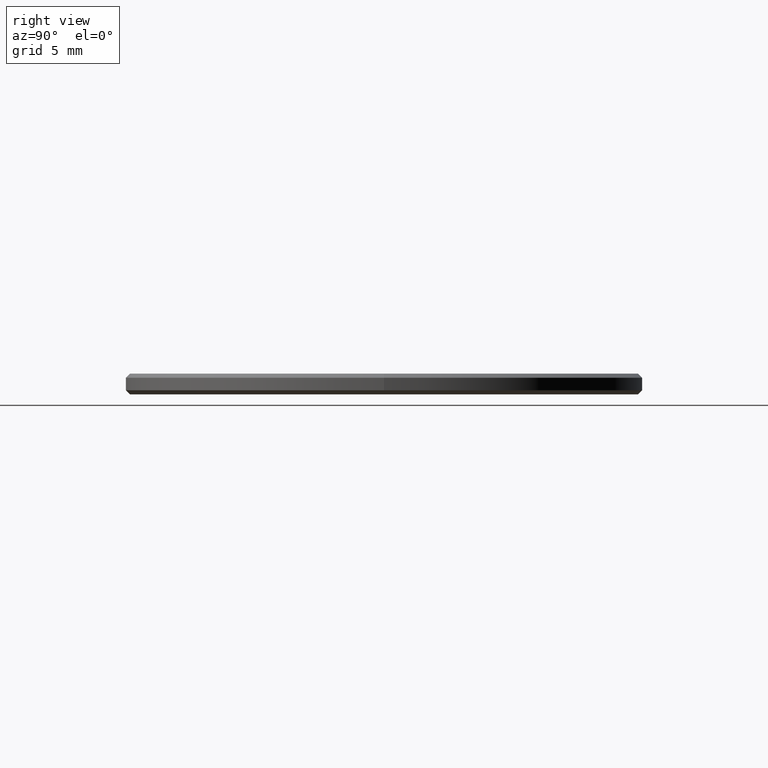
[diagram: clean part render]
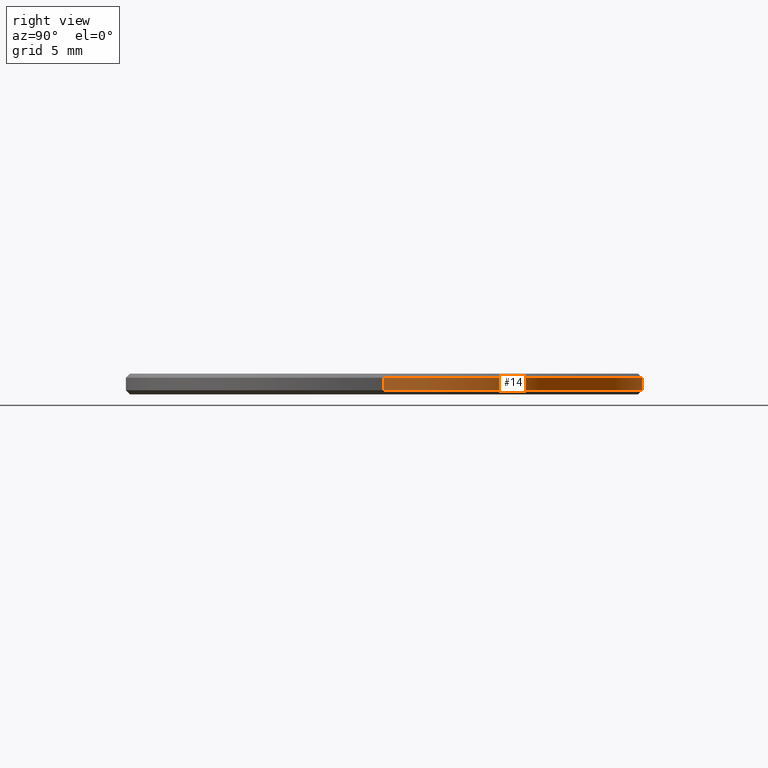
[diagram: same view with one face highlighted and labeled with its STEP entity id]
A machine part, right view. The second image highlights one B-rep face of the part: STEP entity #14.
In plain terms, the highlighted cylindrical surface (partial cylindrical patch) has radius 12.5 mm, axis along (-0, -0, -1).
Its self-contained STEP definition (entity closure, byte-faithful):
#2 = VERTEX_POINT ( 'NONE', #87 ) ;
#5 = CARTESIAN_POINT ( 'NONE',  ( -12.50000000000000000, 0.000000000000000000, 0.1999999999999987899 ) ) ;
#9 = CARTESIAN_POINT ( 'NONE',  ( 0.000000000000000000, 0.000000000000000000, 0.1999999999999987899 ) ) ;
#12 = VECTOR ( 'NONE', #52, 1000.000000000000000 ) ;
#13 = DIRECTION ( 'NONE',  ( 1.000000000000000000, 0.000000000000000000, 0.000000000000000000 ) ) ;
#14 = ADVANCED_FACE ( 'NONE', ( #160 ), #218, .T. ) ;
#15 = DIRECTION ( 'NONE',  ( -0.000000000000000000, -0.000000000000000000, -1.000000000000000000 ) ) ;
#17 = LINE ( 'NONE', #90, #12 ) ;
#22 = EDGE_LOOP ( 'NONE', ( #155, #166, #223, #208 ) ) ;
#27 = VERTEX_POINT ( 'NONE', #216 ) ;
#36 = DIRECTION ( 'NONE',  ( -1.000000000000000000, 0.000000000000000000, 0.000000000000000000 ) ) ;
#38 = CIRCLE ( 'NONE', #53, 12.50000000000000000 ) ;
#52 = DIRECTION ( 'NONE',  ( -0.000000000000000000, -0.000000000000000000, -1.000000000000000000 ) ) ;
#53 = AXIS2_PLACEMENT_3D ( 'NONE', #200, #227, #134 ) ;
#54 = EDGE_CURVE ( 'NONE', #114, #209, #66, .T. ) ;
#59 = VECTOR ( 'NONE', #77, 1000.000000000000000 ) ;
#66 = CIRCLE ( 'NONE', #92, 12.50000000000000000 ) ;
#77 = DIRECTION ( 'NONE',  ( -0.000000000000000000, -0.000000000000000000, -1.000000000000000000 ) ) ;
#87 = CARTESIAN_POINT ( 'NONE',  ( 12.50000000000000000, 1.530808498934191521E-15, 0.8000000000000029310 ) ) ;
#90 = CARTESIAN_POINT ( 'NONE',  ( -12.50000000000000000, 0.000000000000000000, 1.000000000000000000 ) ) ;
#92 = AXIS2_PLACEMENT_3D ( 'NONE', #9, #103, #13 ) ;
#95 = LINE ( 'NONE', #101, #59 ) ;
#101 = CARTESIAN_POINT ( 'NONE',  ( 12.50000000000000000, 1.530808498934191521E-15, 1.000000000000000000 ) ) ;
#103 = DIRECTION ( 'NONE',  ( -0.000000000000000000, -0.000000000000000000, 1.000000000000000000 ) ) ;
#108 = CARTESIAN_POINT ( 'NONE',  ( 0.000000000000000000, 0.000000000000000000, 1.000000000000000000 ) ) ;
#114 = VERTEX_POINT ( 'NONE', #219 ) ;
#127 = EDGE_CURVE ( 'NONE', #27, #209, #17, .T. ) ;
#134 = DIRECTION ( 'NONE',  ( 1.000000000000000000, 0.000000000000000000, 0.000000000000000000 ) ) ;
#149 = EDGE_CURVE ( 'NONE', #27, #2, #38, .T. ) ;
#155 = ORIENTED_EDGE ( 'NONE', *, *, #149, .T. ) ;
#160 = FACE_OUTER_BOUND ( 'NONE', #22, .T. ) ;
#166 = ORIENTED_EDGE ( 'NONE', *, *, #204, .T. ) ;
#200 = CARTESIAN_POINT ( 'NONE',  ( 0.000000000000000000, 0.000000000000000000, 0.8000000000000029310 ) ) ;
#204 = EDGE_CURVE ( 'NONE', #2, #114, #95, .T. ) ;
#208 = ORIENTED_EDGE ( 'NONE', *, *, #127, .F. ) ;
#209 = VERTEX_POINT ( 'NONE', #5 ) ;
#211 = AXIS2_PLACEMENT_3D ( 'NONE', #108, #15, #36 ) ;
#216 = CARTESIAN_POINT ( 'NONE',  ( -12.50000000000000000, 0.000000000000000000, 0.8000000000000029310 ) ) ;
#218 = CYLINDRICAL_SURFACE ( 'NONE', #211, 12.50000000000000000 ) ;
#219 = CARTESIAN_POINT ( 'NONE',  ( 12.50000000000000000, 1.530808498934191521E-15, 0.1999999999999987899 ) ) ;
#223 = ORIENTED_EDGE ( 'NONE', *, *, #54, .T. ) ;
#227 = DIRECTION ( 'NONE',  ( 0.000000000000000000, 0.000000000000000000, -1.000000000000000000 ) ) ;